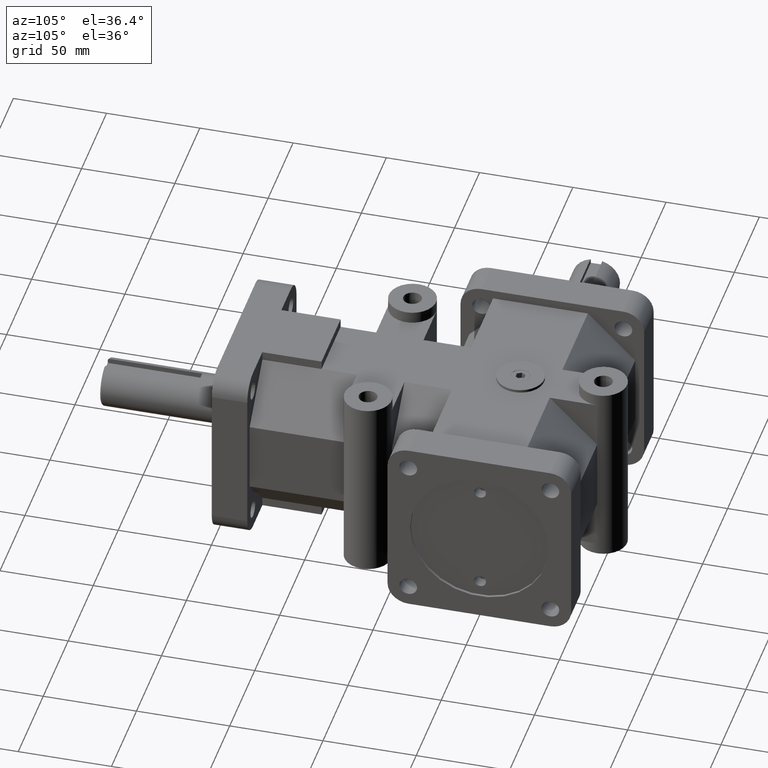
[diagram: clean part render]
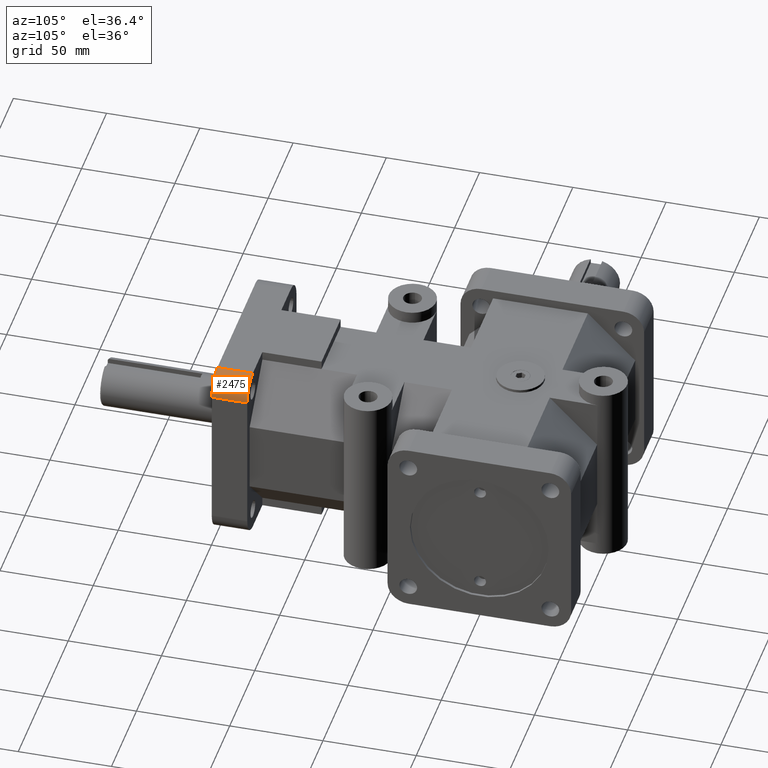
[diagram: same view with one face highlighted and labeled with its STEP entity id]
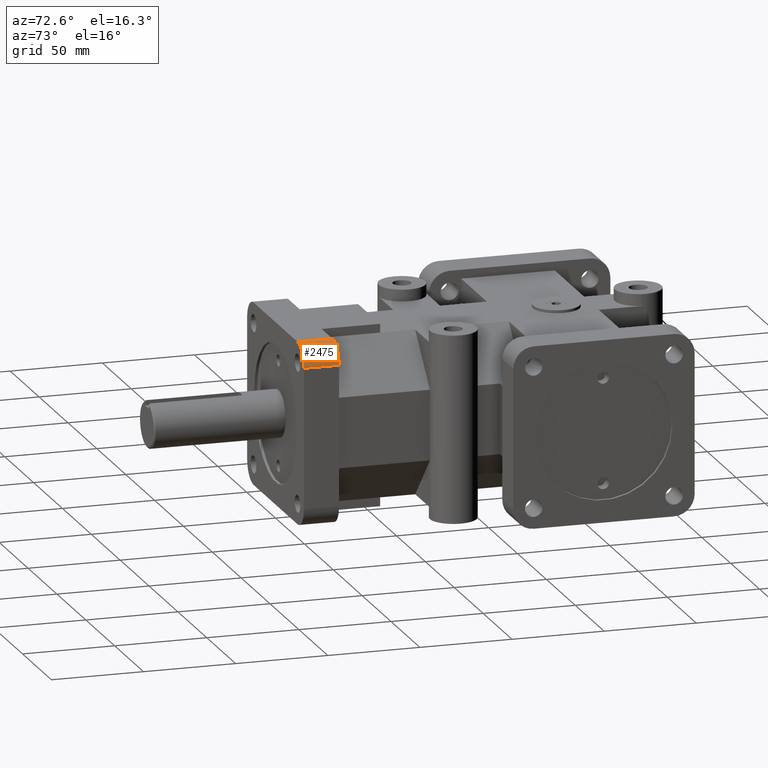
[diagram: same view with one face highlighted and labeled with its STEP entity id]
A machine part, auxiliary view. The second image highlights one B-rep face of the part: STEP entity #2475.
A second angle (auxiliary view) of the same face is appended — the face is thin or edge-on in the first view.
In plain terms, the highlighted cylindrical surface (edge-blend (fillet) strip) has radius 11.176 mm, axis along (0, -1, 0).
Its self-contained STEP definition (entity closure, byte-faithful):
#35=CYLINDRICAL_SURFACE('',#2683,0.44);
#161=CIRCLE('',#2684,0.44);
#162=CIRCLE('',#2685,0.44);
#245=FACE_OUTER_BOUND('',#409,.T.);
#409=EDGE_LOOP('',(#1812,#1813,#1814,#1815));
#635=LINE('',#3875,#885);
#636=LINE('',#3878,#886);
#885=VECTOR('',#3101,1.);
#886=VECTOR('',#3104,1.);
#1161=VERTEX_POINT('',#3871);
#1162=VERTEX_POINT('',#3872);
#1163=VERTEX_POINT('',#3874);
#1164=VERTEX_POINT('',#3876);
#1413=EDGE_CURVE('',#1161,#1162,#161,.T.);
#1414=EDGE_CURVE('',#1162,#1163,#635,.T.);
#1415=EDGE_CURVE('',#1163,#1164,#162,.T.);
#1416=EDGE_CURVE('',#1164,#1161,#636,.T.);
#1812=ORIENTED_EDGE('',*,*,#1413,.T.);
#1813=ORIENTED_EDGE('',*,*,#1414,.T.);
#1814=ORIENTED_EDGE('',*,*,#1415,.T.);
#1815=ORIENTED_EDGE('',*,*,#1416,.T.);
#2475=ADVANCED_FACE('',(#245),#35,.T.);
#2683=AXIS2_PLACEMENT_3D('',#3870,#3097,#3098);
#2684=AXIS2_PLACEMENT_3D('',#3873,#3099,#3100);
#2685=AXIS2_PLACEMENT_3D('',#3877,#3102,#3103);
#3097=DIRECTION('center_axis',(0.,-1.,0.));
#3098=DIRECTION('ref_axis',(0.707106781186547,0.,0.707106781186547));
#3099=DIRECTION('center_axis',(0.,1.,0.));
#3100=DIRECTION('ref_axis',(0.707106781186547,0.,0.707106781186547));
#3101=DIRECTION('',(0.,1.,0.));
#3102=DIRECTION('center_axis',(0.,-1.,0.));
#3103=DIRECTION('ref_axis',(0.707106781186547,0.,0.707106781186547));
#3104=DIRECTION('',(0.,-1.,0.));
#3870=CARTESIAN_POINT('Origin',(1.4975,0.373670212765957,1.4975));
#3871=CARTESIAN_POINT('',(1.4975,0.,1.9375));
#3872=CARTESIAN_POINT('',(1.9375,0.,1.4975));
#3873=CARTESIAN_POINT('Origin',(1.4975,-5.55111512312578E-17,1.4975));
#3874=CARTESIAN_POINT('',(1.9375,0.75,1.4975));
#3875=CARTESIAN_POINT('',(1.9375,0.373670212765957,1.4975));
#3876=CARTESIAN_POINT('',(1.4975,0.75,1.9375));
#3877=CARTESIAN_POINT('Origin',(1.4975,0.75,1.4975));
#3878=CARTESIAN_POINT('',(1.4975,0.373670212765957,1.9375));